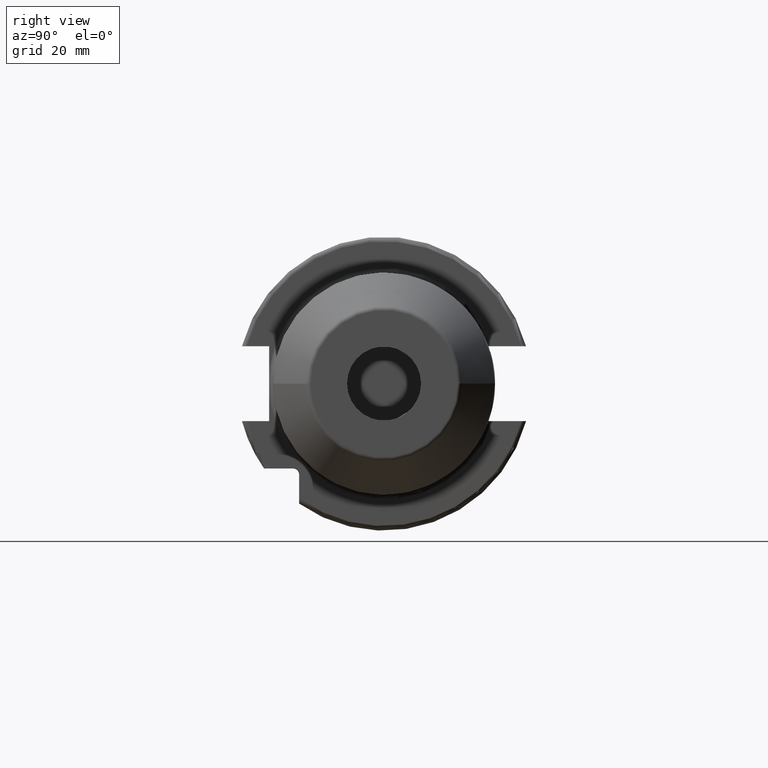
[diagram: clean part render]
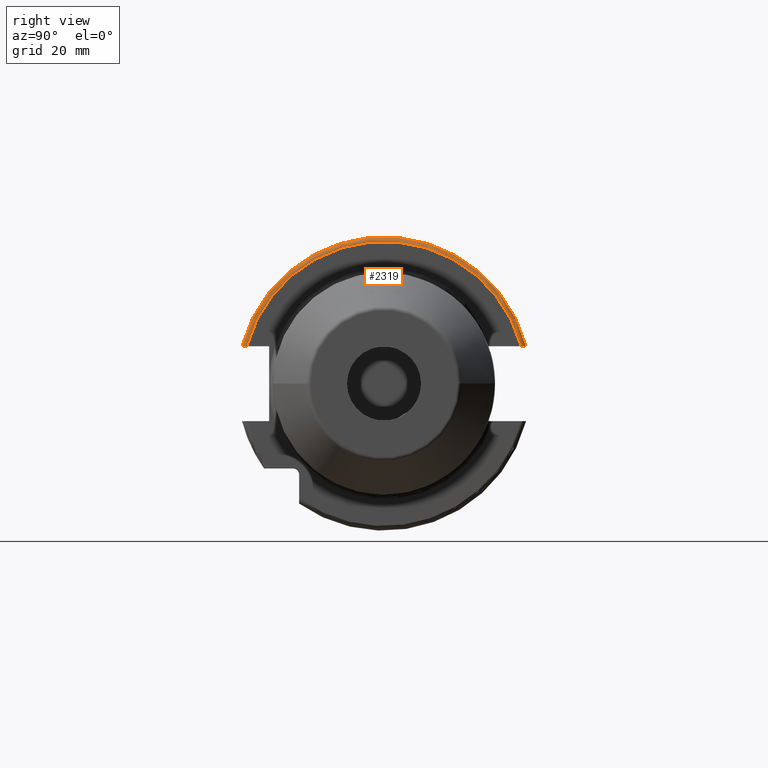
[diagram: same view with one face highlighted and labeled with its STEP entity id]
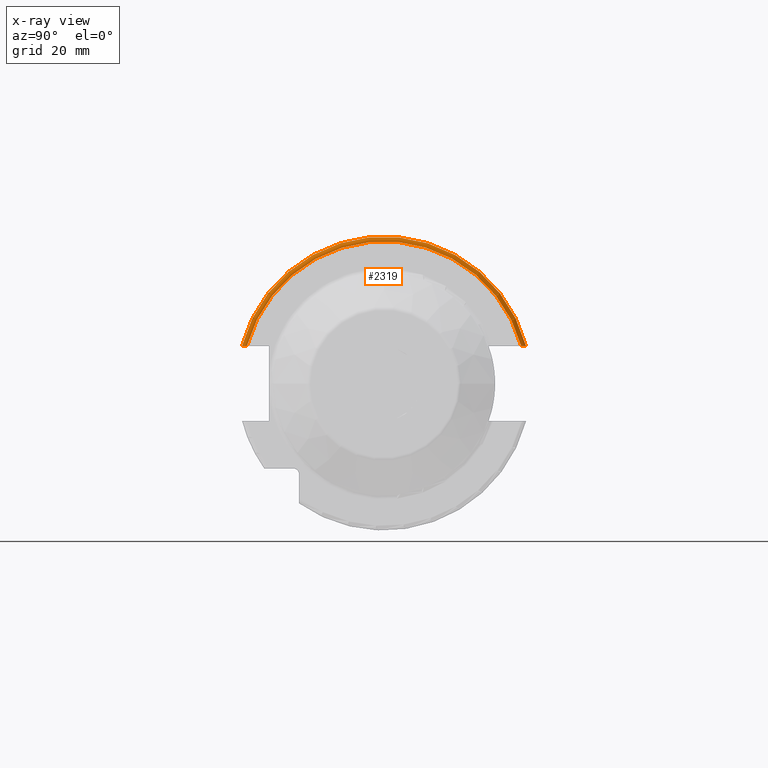
[diagram: x-ray of the same camera — body ghosted, the highlighted face saturated]
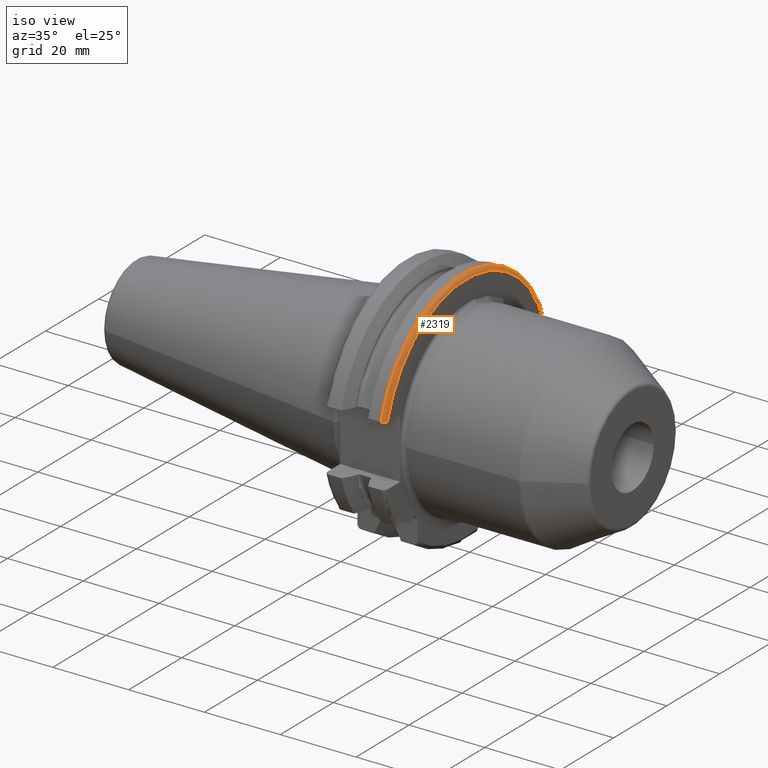
[diagram: same view with one face highlighted and labeled with its STEP entity id]
A machine part, right view. The second image highlights one B-rep face of the part: STEP entity #2319.
The next image is the same camera in x-ray: the body ghosted, the highlighted face saturated — about 0% of this face is hidden behind the body in this view.
A second angle (iso view) of the same face is appended — the face is thin or edge-on in the first view.
In plain terms, the highlighted toroidal blend (fillet) surface has major radius 30.7625 mm and minor (blend) radius 1 mm.
Its self-contained STEP definition (entity closure, byte-faithful):
#496=CARTESIAN_POINT('',(1.805E1,0.E0,0.E0));
#497=DIRECTION('',(1.E0,0.E0,0.E0));
#498=DIRECTION('',(0.E0,9.669363825036E-1,2.550177095632E-1));
#499=AXIS2_PLACEMENT_3D('',#496,#497,#498);
#528=CARTESIAN_POINT('',(1.905E1,2.967695075728E1,8.1E0));
#529=CARTESIAN_POINT('',(1.905E1,2.975534544469E1,8.1E0));
#530=CARTESIAN_POINT('',(1.903327439626E1,2.990764711142E1,8.1E0));
#531=CARTESIAN_POINT('',(1.895996891946E1,3.012703601742E1,8.1E0));
#532=CARTESIAN_POINT('',(1.884140031799E1,3.032417656220E1,8.1E0));
#533=CARTESIAN_POINT('',(1.868299781019E1,3.048994814949E1,8.1E0));
#534=CARTESIAN_POINT('',(1.849140267654E1,3.061604720054E1,8.1E0));
#535=CARTESIAN_POINT('',(1.827601722220E1,3.069451682863E1,8.1E0));
#536=CARTESIAN_POINT('',(1.812684136073E1,3.071231684927E1,8.1E0));
#537=CARTESIAN_POINT('',(1.805E1,3.071231684927E1,8.1E0));
#539=CARTESIAN_POINT('',(1.905E1,0.E0,0.E0));
#540=DIRECTION('',(1.E0,0.E0,0.E0));
#541=DIRECTION('',(0.E0,9.647119303464E-1,2.633075985372E-1));
#542=AXIS2_PLACEMENT_3D('',#539,#540,#541);
#544=CARTESIAN_POINT('',(1.805E1,-3.071231684927E1,8.1E0));
#545=CARTESIAN_POINT('',(1.812702529647E1,-3.071231684927E1,8.1E0));
#546=CARTESIAN_POINT('',(1.827656518037E1,-3.069444719907E1,8.1E0));
#547=CARTESIAN_POINT('',(1.849273698584E1,-3.061544862934E1,8.1E0));
#548=CARTESIAN_POINT('',(1.868460186607E1,-3.048863686818E1,8.1E0));
#549=CARTESIAN_POINT('',(1.884263679922E1,-3.032251203229E1,8.1E0));
#550=CARTESIAN_POINT('',(1.896052984725E1,-3.012566774399E1,8.1E0));
#551=CARTESIAN_POINT('',(1.903334281973E1,-2.990707436768E1,8.1E0));
#552=CARTESIAN_POINT('',(1.905E1,-2.975515277820E1,8.1E0));
#553=CARTESIAN_POINT('',(1.905E1,-2.967695075728E1,8.1E0));
#1521=CARTESIAN_POINT('',(1.905E1,-2.967695075728E1,8.1E0));
#1523=VERTEX_POINT('',#1521);
#1527=CARTESIAN_POINT('',(1.805E1,3.071231684927E1,8.1E0));
#1528=VERTEX_POINT('',#1527);
#1531=CARTESIAN_POINT('',(1.805E1,-3.071231684927E1,8.1E0));
#1532=VERTEX_POINT('',#1531);
#1562=VERTEX_POINT('',#528);
#2308=CARTESIAN_POINT('',(1.805E1,0.E0,0.E0));
#2309=DIRECTION('',(1.E0,0.E0,0.E0));
#2310=DIRECTION('',(0.E0,-1.E0,0.E0));
#2311=AXIS2_PLACEMENT_3D('',#2308,#2309,#2310);
#2312=TOROIDAL_SURFACE('',#2311,3.07625E1,1.E0);
#2313=ORIENTED_EDGE('',*,*,#1850,.F.);
#2314=ORIENTED_EDGE('',*,*,#2023,.T.);
#2315=ORIENTED_EDGE('',*,*,#2295,.F.);
#2316=ORIENTED_EDGE('',*,*,#2262,.F.);
#2317=EDGE_LOOP('',(#2313,#2314,#2315,#2316));
#2318=FACE_OUTER_BOUND('',#2317,.F.);
#2319=ADVANCED_FACE('',(#2318),#2312,.T.);
#500=CIRCLE('',#499,3.17625E1);
#538=B_SPLINE_CURVE_WITH_KNOTS('',3,(#528,#529,#530,#531,#532,#533,#534,#535,
#536,#537),.UNSPECIFIED.,.F.,.F.,(4,1,1,1,1,1,1,4),(0.E0,1.428571428571E-1,
2.857142857143E-1,4.285714285714E-1,5.714285714286E-1,7.142857142857E-1,
8.571428571429E-1,1.E0),.UNSPECIFIED.);
#543=CIRCLE('',#542,3.07625E1);
#554=B_SPLINE_CURVE_WITH_KNOTS('',3,(#544,#545,#546,#547,#548,#549,#550,#551,
#552,#553),.UNSPECIFIED.,.F.,.F.,(4,1,1,1,1,1,1,4),(0.E0,1.428571428571E-1,
2.857142857143E-1,4.285714285714E-1,5.714285714286E-1,7.142857142857E-1,
8.571428571429E-1,1.E0),.UNSPECIFIED.);
#1850=EDGE_CURVE('',#1562,#1528,#538,.T.);
#2023=EDGE_CURVE('',#1562,#1523,#543,.T.);
#2262=EDGE_CURVE('',#1528,#1532,#500,.T.);
#2295=EDGE_CURVE('',#1532,#1523,#554,.T.);